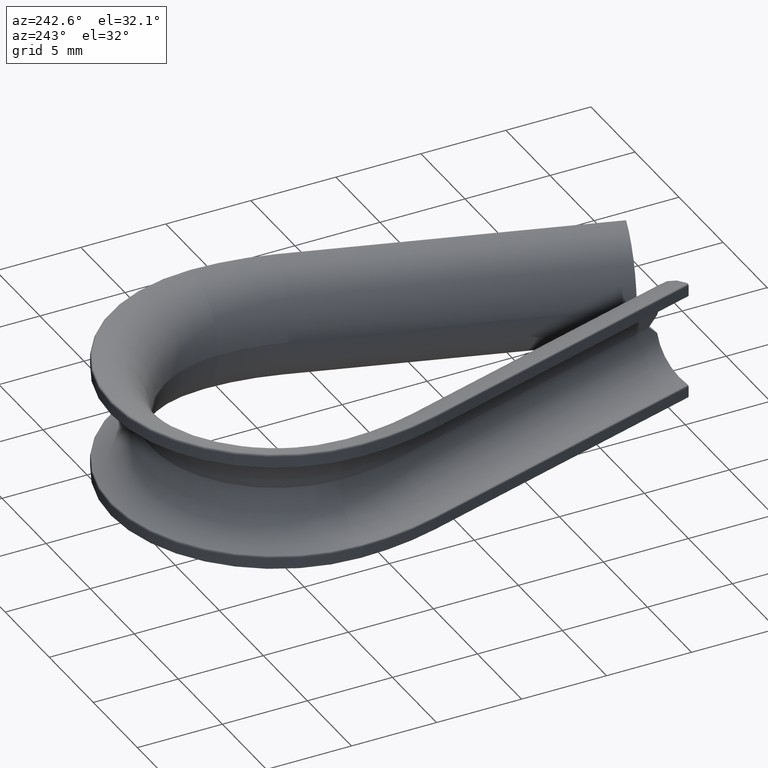
[diagram: clean part render]
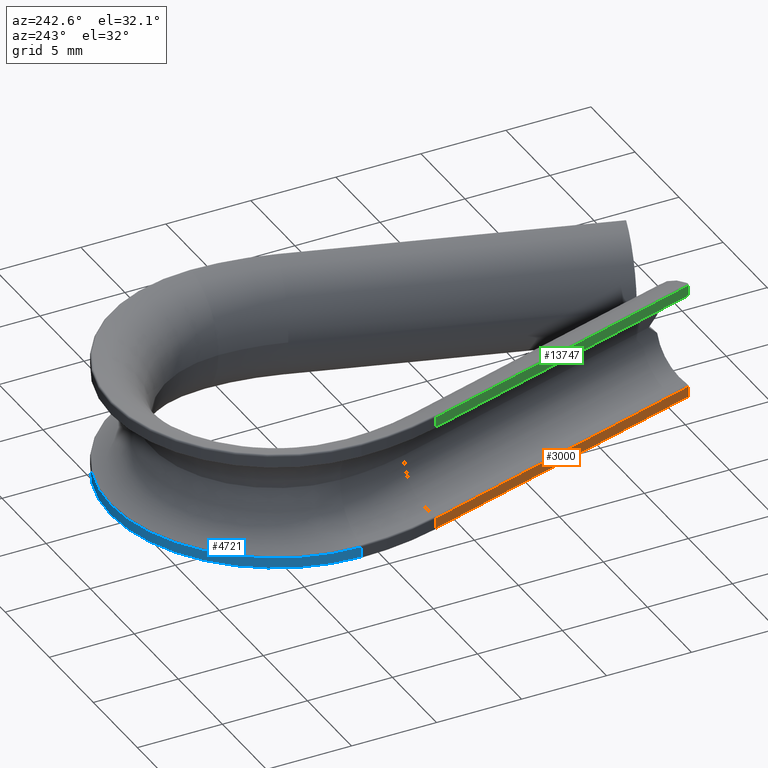
[diagram: same view with three faces highlighted in distinct colors, each labeled with its STEP entity id]
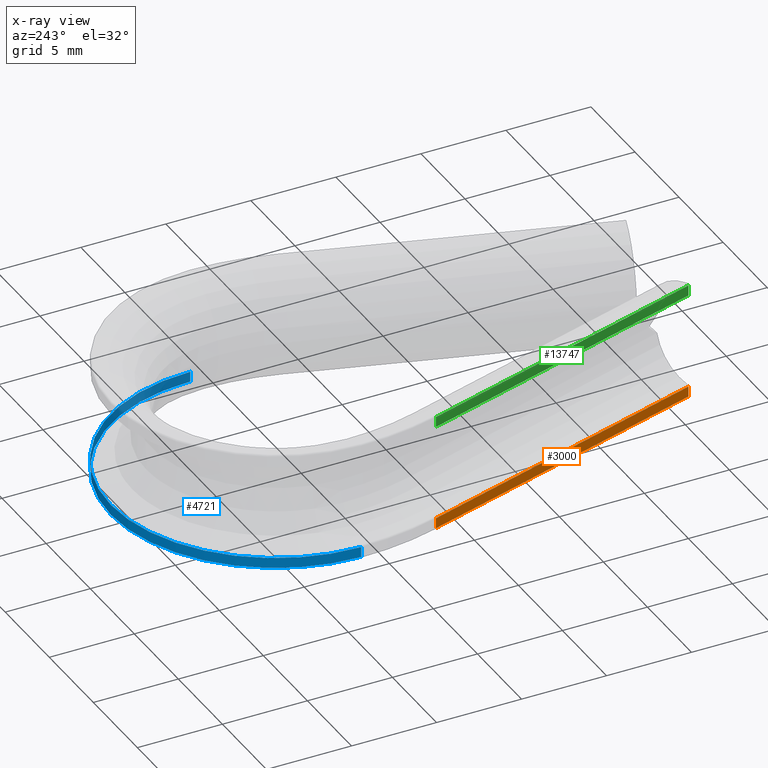
[diagram: x-ray of the same camera — body ghosted, the three highlighted faces saturated]
A machine part, auxiliary view with three faces highlighted in distinct colors.
The next image is the same camera in x-ray (body ghosted, the three faces saturated) — at least one of them is partly hidden behind the body in this view.
Their STEP definitions:

[orange] entity #3000 — the highlighted planar face has unit normal (0.956, 0.2934, -0).
#1457 = VECTOR ( 'NONE', #5034, 1000.000000000000100 ) ;
#3000 = ADVANCED_FACE ( 'NONE', ( #11925 ), #10730, .F. ) ;
#3114 = DIRECTION ( 'NONE',  ( 0.0000000000000000000, 0.0000000000000000000, 1.000000000000000000 ) ) ;
#3243 = CARTESIAN_POINT ( 'NONE',  ( -8.987041564792177100, 16.74694376528118100, -2.814249455894057800 ) ) ;
#3278 = ORIENTED_EDGE ( 'NONE', *, *, #4136, .T. ) ;
#3627 = DIRECTION ( 'NONE',  ( 0.9559902200488997700, 0.2933985330073350400, -0.0000000000000000000 ) ) ;
#3677 = CARTESIAN_POINT ( 'NONE',  ( -8.987041564792177100, 16.74694376528118100, -2.727636339397170800 ) ) ;
#3705 = DIRECTION ( 'NONE',  ( 0.2933985330073349800, -0.9559902200488996600, 0.0000000000000000000 ) ) ;
#4136 = EDGE_CURVE ( 'NONE', #15351, #9151, #7674, .T. ) ;
#4540 = VECTOR ( 'NONE', #3705, 1000.000000000000100 ) ;
#4844 = CARTESIAN_POINT ( 'NONE',  ( -8.987041564792177100, 16.74694376528118100, -3.420526275297411700 ) ) ;
#4884 = ORIENTED_EDGE ( 'NONE', *, *, #13231, .T. ) ;
#5034 = DIRECTION ( 'NONE',  ( -0.2933985330073349800, 0.9559902200488996600, -0.0000000000000000000 ) ) ;
#6272 = EDGE_LOOP ( 'NONE', ( #12564, #4884, #8246, #3278 ) ) ;
#6709 = VERTEX_POINT ( 'NONE', #3243 ) ;
#6741 = LINE ( 'NONE', #14894, #10437 ) ;
#7204 = AXIS2_PLACEMENT_3D ( 'NONE', #3677, #3627, #14094 ) ;
#7630 = CARTESIAN_POINT ( 'NONE',  ( -8.987041564792177100, 16.74694376528118100, -2.814249455894056100 ) ) ;
#7674 = LINE ( 'NONE', #4844, #4540 ) ;
#8033 = CARTESIAN_POINT ( 'NONE',  ( -3.559168704156479500, -0.9388753056234697700, -2.814249455894056100 ) ) ;
#8246 = ORIENTED_EDGE ( 'NONE', *, *, #9100, .F. ) ;
#8283 = VECTOR ( 'NONE', #10815, 1000.000000000000000 ) ;
#9100 = EDGE_CURVE ( 'NONE', #15351, #6709, #6741, .T. ) ;
#9151 = VERTEX_POINT ( 'NONE', #13805 ) ;
#9586 = LINE ( 'NONE', #9608, #8283 ) ;
#9608 = CARTESIAN_POINT ( 'NONE',  ( -3.559168704156479500, -0.9388753056234697700, -2.727636339397170800 ) ) ;
#10187 = LINE ( 'NONE', #7630, #1457 ) ;
#10437 = VECTOR ( 'NONE', #3114, 1000.000000000000000 ) ;
#10730 = PLANE ( 'NONE',  #7204 ) ;
#10815 = DIRECTION ( 'NONE',  ( 0.0000000000000000000, 0.0000000000000000000, 1.000000000000000000 ) ) ;
#10920 = CARTESIAN_POINT ( 'NONE',  ( -8.987041564792177100, 16.74694376528118100, -3.420526275297413500 ) ) ;
#10958 = VERTEX_POINT ( 'NONE', #8033 ) ;
#11925 = FACE_OUTER_BOUND ( 'NONE', #6272, .T. ) ;
#12564 = ORIENTED_EDGE ( 'NONE', *, *, #14383, .T. ) ;
#13231 = EDGE_CURVE ( 'NONE', #10958, #6709, #10187, .T. ) ;
#13805 = CARTESIAN_POINT ( 'NONE',  ( -3.559168704156479500, -0.9388753056234697700, -3.420526275297411700 ) ) ;
#14094 = DIRECTION ( 'NONE',  ( -0.2933985330073349800, 0.9559902200488996600, 0.0000000000000000000 ) ) ;
#14383 = EDGE_CURVE ( 'NONE', #9151, #10958, #9586, .T. ) ;
#14894 = CARTESIAN_POINT ( 'NONE',  ( -8.987041564792177100, 16.74694376528118100, -2.727636339397170800 ) ) ;
#15351 = VERTEX_POINT ( 'NONE', #10920 ) ;

[blue] entity #4721 — the highlighted cylindrical surface (partial cylindrical patch) has radius 9.7 mm, axis along (0, 0, 1).
#1221 = DIRECTION ( 'NONE',  ( 0.0000000000000000000, 0.0000000000000000000, 1.000000000000000000 ) ) ;
#1532 = EDGE_LOOP ( 'NONE', ( #15077, #14588, #13546, #2508 ) ) ;
#1752 = CARTESIAN_POINT ( 'NONE',  ( -9.700000000000001100, 21.50000000000000000, -2.727636339397170800 ) ) ;
#2508 = ORIENTED_EDGE ( 'NONE', *, *, #3835, .T. ) ;
#2622 = AXIS2_PLACEMENT_3D ( 'NONE', #11862, #1221, #13104 ) ;
#3100 = CIRCLE ( 'NONE', #11695, 9.700000000000001100 ) ;
#3224 = EDGE_CURVE ( 'NONE', #4593, #4970, #15275, .T. ) ;
#3495 = CYLINDRICAL_SURFACE ( 'NONE', #9207, 9.700000000000001100 ) ;
#3551 = EDGE_CURVE ( 'NONE', #4970, #5194, #3100, .T. ) ;
#3808 = DIRECTION ( 'NONE',  ( 0.0000000000000000000, 0.0000000000000000000, 1.000000000000000000 ) ) ;
#3835 = EDGE_CURVE ( 'NONE', #14269, #4593, #5333, .T. ) ;
#4480 = CARTESIAN_POINT ( 'NONE',  ( -9.700000000000001100, 21.50000000000000000, -2.814249455894057400 ) ) ;
#4492 = DIRECTION ( 'NONE',  ( -1.000000000000000000, 0.0000000000000000000, 0.0000000000000000000 ) ) ;
#4593 = VERTEX_POINT ( 'NONE', #13936 ) ;
#4721 = ADVANCED_FACE ( 'NONE', ( #12975 ), #3495, .T. ) ;
#4970 = VERTEX_POINT ( 'NONE', #4480 ) ;
#4981 = VECTOR ( 'NONE', #3808, 1000.000000000000000 ) ;
#5194 = VERTEX_POINT ( 'NONE', #12660 ) ;
#5333 = CIRCLE ( 'NONE', #2622, 9.700000000000001100 ) ;
#6124 = DIRECTION ( 'NONE',  ( 1.000000000000000000, 0.0000000000000000000, 0.0000000000000000000 ) ) ;
#6308 = VECTOR ( 'NONE', #10047, 1000.000000000000000 ) ;
#7840 = CARTESIAN_POINT ( 'NONE',  ( 0.0000000000000000000, 21.50000000000000000, -2.814249455894057400 ) ) ;
#8140 = LINE ( 'NONE', #8550, #4981 ) ;
#8550 = CARTESIAN_POINT ( 'NONE',  ( 9.700000000000001100, 21.50000000000000000, -2.727636339397170800 ) ) ;
#8767 = DIRECTION ( 'NONE',  ( 0.0000000000000000000, 0.0000000000000000000, 1.000000000000000000 ) ) ;
#9207 = AXIS2_PLACEMENT_3D ( 'NONE', #12434, #8767, #6124 ) ;
#10046 = CARTESIAN_POINT ( 'NONE',  ( 9.700000000000001100, 21.50000000000000000, -3.420526275297413500 ) ) ;
#10047 = DIRECTION ( 'NONE',  ( 0.0000000000000000000, 0.0000000000000000000, 1.000000000000000000 ) ) ;
#11695 = AXIS2_PLACEMENT_3D ( 'NONE', #7840, #15078, #4492 ) ;
#11862 = CARTESIAN_POINT ( 'NONE',  ( 0.0000000000000000000, 21.50000000000000000, -3.420526275297413500 ) ) ;
#12434 = CARTESIAN_POINT ( 'NONE',  ( 0.0000000000000000000, 21.50000000000000000, 0.0000000000000000000 ) ) ;
#12660 = CARTESIAN_POINT ( 'NONE',  ( 9.700000000000001100, 21.50000000000000000, -2.814249455894057400 ) ) ;
#12975 = FACE_OUTER_BOUND ( 'NONE', #1532, .T. ) ;
#13087 = EDGE_CURVE ( 'NONE', #14269, #5194, #8140, .T. ) ;
#13104 = DIRECTION ( 'NONE',  ( -1.000000000000000000, 0.0000000000000000000, 0.0000000000000000000 ) ) ;
#13546 = ORIENTED_EDGE ( 'NONE', *, *, #13087, .F. ) ;
#13936 = CARTESIAN_POINT ( 'NONE',  ( -9.700000000000001100, 21.50000000000000000, -3.420526275297413500 ) ) ;
#14269 = VERTEX_POINT ( 'NONE', #10046 ) ;
#14588 = ORIENTED_EDGE ( 'NONE', *, *, #3551, .T. ) ;
#15077 = ORIENTED_EDGE ( 'NONE', *, *, #3224, .T. ) ;
#15078 = DIRECTION ( 'NONE',  ( -0.0000000000000000000, -0.0000000000000000000, -1.000000000000000000 ) ) ;
#15275 = LINE ( 'NONE', #1752, #6308 ) ;

[green] entity #13747 — the highlighted planar face has unit normal (0.956, 0.2934, -0).
#509 = VERTEX_POINT ( 'NONE', #13775 ) ;
#1032 = CARTESIAN_POINT ( 'NONE',  ( -8.987041564792177100, 16.74694376528118100, 2.814249455894056100 ) ) ;
#1081 = VECTOR ( 'NONE', #2665, 1000.000000000000000 ) ;
#1596 = EDGE_CURVE ( 'NONE', #6419, #9368, #13544, .T. ) ;
#2116 = CARTESIAN_POINT ( 'NONE',  ( -8.987041564792177100, 16.74694376528118100, 3.532704346531138300 ) ) ;
#2340 = CARTESIAN_POINT ( 'NONE',  ( -8.987041564792177100, 16.74694376528118100, 3.420526275297411700 ) ) ;
#2665 = DIRECTION ( 'NONE',  ( 0.0000000000000000000, 0.0000000000000000000, 1.000000000000000000 ) ) ;
#2680 = EDGE_CURVE ( 'NONE', #6419, #2923, #9002, .T. ) ;
#2923 = VERTEX_POINT ( 'NONE', #4848 ) ;
#2933 = LINE ( 'NONE', #6321, #1081 ) ;
#3401 = DIRECTION ( 'NONE',  ( 0.9559902200488997700, 0.2933985330073350400, -0.0000000000000000000 ) ) ;
#3861 = VECTOR ( 'NONE', #11902, 1000.000000000000100 ) ;
#4848 = CARTESIAN_POINT ( 'NONE',  ( -3.559168704156479500, -0.9388753056234697700, 2.814249455894056100 ) ) ;
#5195 = VECTOR ( 'NONE', #8206, 1000.000000000000000 ) ;
#6321 = CARTESIAN_POINT ( 'NONE',  ( -3.559168704156479500, -0.9388753056234697700, 3.532704346531138300 ) ) ;
#6419 = VERTEX_POINT ( 'NONE', #14977 ) ;
#6460 = AXIS2_PLACEMENT_3D ( 'NONE', #2116, #3401, #11704 ) ;
#7905 = ORIENTED_EDGE ( 'NONE', *, *, #14864, .T. ) ;
#8056 = EDGE_CURVE ( 'NONE', #2923, #509, #2933, .T. ) ;
#8206 = DIRECTION ( 'NONE',  ( 0.0000000000000000000, 0.0000000000000000000, 1.000000000000000000 ) ) ;
#9002 = LINE ( 'NONE', #1032, #10681 ) ;
#9208 = DIRECTION ( 'NONE',  ( 0.2933985330073349800, -0.9559902200488996600, 0.0000000000000000000 ) ) ;
#9258 = EDGE_LOOP ( 'NONE', ( #12238, #13673, #9275, #7905 ) ) ;
#9275 = ORIENTED_EDGE ( 'NONE', *, *, #8056, .T. ) ;
#9368 = VERTEX_POINT ( 'NONE', #13632 ) ;
#9604 = CARTESIAN_POINT ( 'NONE',  ( -8.987041564792177100, 16.74694376528118100, 3.532704346531138300 ) ) ;
#10681 = VECTOR ( 'NONE', #9208, 1000.000000000000100 ) ;
#11704 = DIRECTION ( 'NONE',  ( -0.2933985330073349800, 0.9559902200488996600, 0.0000000000000000000 ) ) ;
#11902 = DIRECTION ( 'NONE',  ( -0.2933985330073349800, 0.9559902200488996600, -0.0000000000000000000 ) ) ;
#12238 = ORIENTED_EDGE ( 'NONE', *, *, #1596, .F. ) ;
#13143 = LINE ( 'NONE', #2340, #3861 ) ;
#13544 = LINE ( 'NONE', #9604, #5195 ) ;
#13632 = CARTESIAN_POINT ( 'NONE',  ( -8.987041564792177100, 16.74694376528118100, 3.420526275297413500 ) ) ;
#13673 = ORIENTED_EDGE ( 'NONE', *, *, #2680, .T. ) ;
#13747 = ADVANCED_FACE ( 'NONE', ( #15020 ), #14025, .F. ) ;
#13775 = CARTESIAN_POINT ( 'NONE',  ( -3.559168704156479500, -0.9388753056234697700, 3.420526275297411700 ) ) ;
#14025 = PLANE ( 'NONE',  #6460 ) ;
#14864 = EDGE_CURVE ( 'NONE', #509, #9368, #13143, .T. ) ;
#14977 = CARTESIAN_POINT ( 'NONE',  ( -8.987041564792177100, 16.74694376528118100, 2.814249455894057800 ) ) ;
#15020 = FACE_OUTER_BOUND ( 'NONE', #9258, .T. ) ;